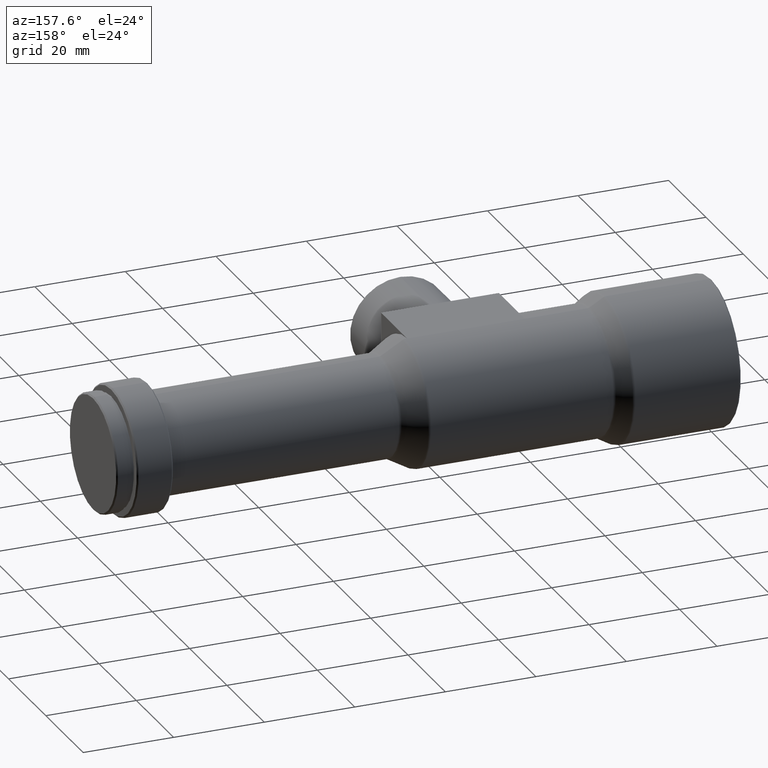
[diagram: clean part render]
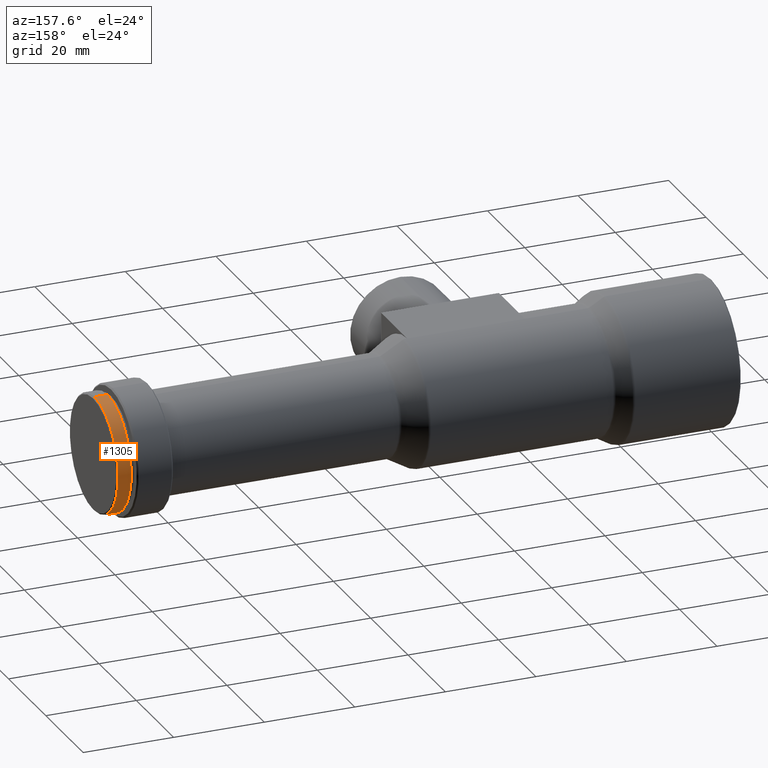
[diagram: same view with one face highlighted and labeled with its STEP entity id]
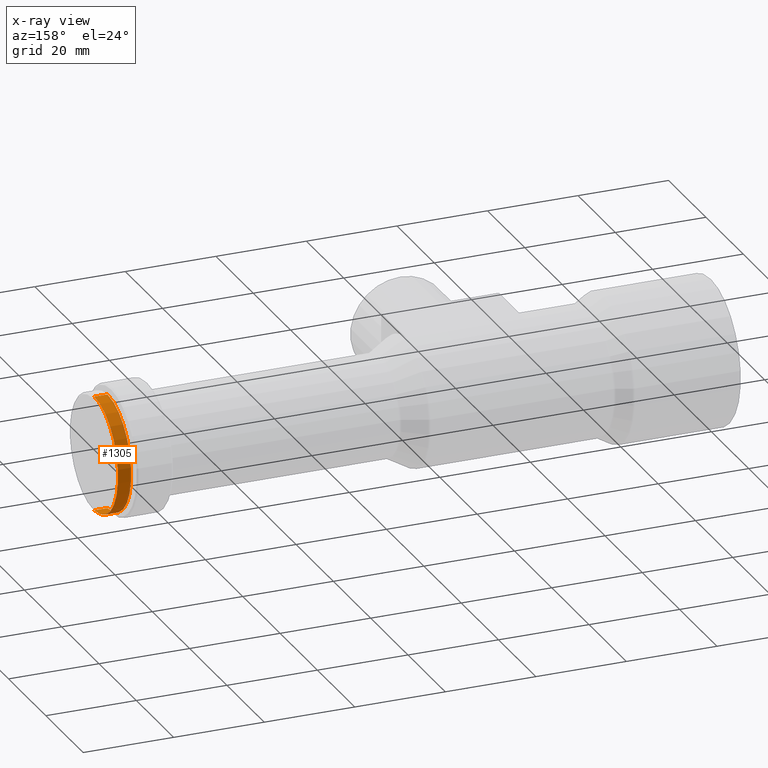
[diagram: x-ray of the same camera — body ghosted, the highlighted face saturated]
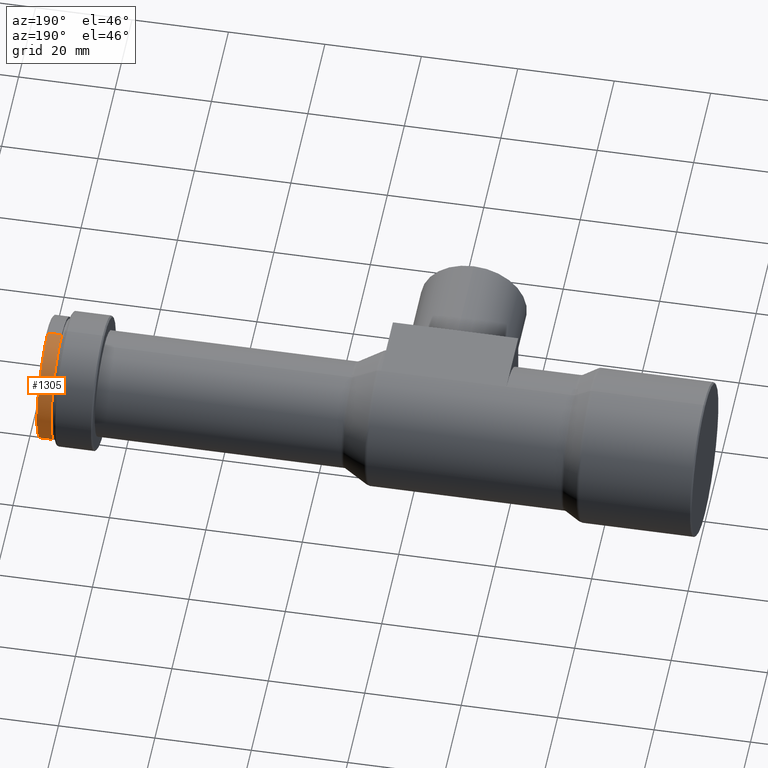
[diagram: same view with one face highlighted and labeled with its STEP entity id]
A machine part, auxiliary view. The second image highlights one B-rep face of the part: STEP entity #1305.
The next image is the same camera in x-ray: the body ghosted, the highlighted face saturated — about 0% of this face is hidden behind the body in this view.
A second angle (auxiliary view) of the same face is appended — the face is thin or edge-on in the first view.
In plain terms, the highlighted cylindrical surface (partial cylindrical patch) has radius 12.7 mm, axis along (-1, -0, -0).
Its self-contained STEP definition (entity closure, byte-faithful):
#56 = CARTESIAN_POINT ( 'NONE',  ( 0.0000000000000000000, 0.0000000000000000000, 0.0000000000000000000 ) ) ;
#59 = ORIENTED_EDGE ( 'NONE', *, *, #1307, .F. ) ;
#81 = DIRECTION ( 'NONE',  ( 0.0000000000000000000, 0.0000000000000000000, 1.000000000000000000 ) ) ;
#207 = DIRECTION ( 'NONE',  ( -1.000000000000000000, -0.0000000000000000000, -0.0000000000000000000 ) ) ;
#227 = EDGE_CURVE ( 'NONE', #663, #1099, #1477, .T. ) ;
#244 = DIRECTION ( 'NONE',  ( -1.000000000000000000, -0.0000000000000000000, -0.0000000000000000000 ) ) ;
#255 = VERTEX_POINT ( 'NONE', #1475 ) ;
#395 = DIRECTION ( 'NONE',  ( -1.000000000000000000, -0.0000000000000000000, -0.0000000000000000000 ) ) ;
#415 = AXIS2_PLACEMENT_3D ( 'NONE', #56, #395, #511 ) ;
#427 = VECTOR ( 'NONE', #244, 1000.000000000000000 ) ;
#448 = LINE ( 'NONE', #982, #547 ) ;
#511 = DIRECTION ( 'NONE',  ( 0.0000000000000000000, 0.0000000000000000000, 1.000000000000000000 ) ) ;
#525 = DIRECTION ( 'NONE',  ( -1.000000000000000000, -0.0000000000000000000, -0.0000000000000000000 ) ) ;
#547 = VECTOR ( 'NONE', #1220, 1000.000000000000000 ) ;
#586 = VERTEX_POINT ( 'NONE', #1101 ) ;
#640 = ORIENTED_EDGE ( 'NONE', *, *, #1447, .F. ) ;
#663 = VERTEX_POINT ( 'NONE', #1038 ) ;
#716 = CARTESIAN_POINT ( 'NONE',  ( 0.0000000000000000000, 1.555301434917140200E-015, -12.70000000000001400 ) ) ;
#738 = DIRECTION ( 'NONE',  ( 0.0000000000000000000, 0.0000000000000000000, 1.000000000000000000 ) ) ;
#758 = CARTESIAN_POINT ( 'NONE',  ( 133.3999999999999800, 0.0000000000000000000, 0.0000000000000000000 ) ) ;
#792 = ORIENTED_EDGE ( 'NONE', *, *, #1389, .T. ) ;
#962 = EDGE_LOOP ( 'NONE', ( #792, #1233, #59, #640 ) ) ;
#966 = AXIS2_PLACEMENT_3D ( 'NONE', #1228, #207, #81 ) ;
#982 = CARTESIAN_POINT ( 'NONE',  ( 0.0000000000000000000, 0.0000000000000000000, 12.70000000000001400 ) ) ;
#1038 = CARTESIAN_POINT ( 'NONE',  ( 136.3000000000000100, 1.555301434917140200E-015, -12.70000000000001400 ) ) ;
#1099 = VERTEX_POINT ( 'NONE', #1210 ) ;
#1101 = CARTESIAN_POINT ( 'NONE',  ( 136.3000000000000100, 0.0000000000000000000, 12.70000000000001400 ) ) ;
#1113 = AXIS2_PLACEMENT_3D ( 'NONE', #758, #525, #738 ) ;
#1146 = CYLINDRICAL_SURFACE ( 'NONE', #415, 12.70000000000001400 ) ;
#1177 = CIRCLE ( 'NONE', #966, 12.70000000000001400 ) ;
#1210 = CARTESIAN_POINT ( 'NONE',  ( 133.3999999999999800, 1.555301434917140200E-015, -12.70000000000001400 ) ) ;
#1220 = DIRECTION ( 'NONE',  ( -1.000000000000000000, -0.0000000000000000000, -0.0000000000000000000 ) ) ;
#1228 = CARTESIAN_POINT ( 'NONE',  ( 136.3000000000000100, 0.0000000000000000000, 0.0000000000000000000 ) ) ;
#1233 = ORIENTED_EDGE ( 'NONE', *, *, #227, .T. ) ;
#1236 = FACE_OUTER_BOUND ( 'NONE', #962, .T. ) ;
#1270 = CIRCLE ( 'NONE', #1113, 12.70000000000001400 ) ;
#1305 = ADVANCED_FACE ( 'NONE', ( #1236 ), #1146, .T. ) ;
#1307 = EDGE_CURVE ( 'NONE', #255, #1099, #1270, .T. ) ;
#1389 = EDGE_CURVE ( 'NONE', #586, #663, #1177, .T. ) ;
#1447 = EDGE_CURVE ( 'NONE', #586, #255, #448, .T. ) ;
#1475 = CARTESIAN_POINT ( 'NONE',  ( 133.3999999999999800, 0.0000000000000000000, 12.70000000000001400 ) ) ;
#1477 = LINE ( 'NONE', #716, #427 ) ;